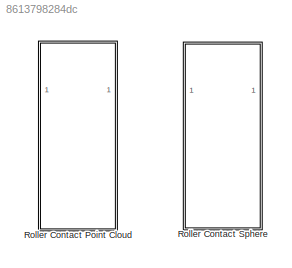
MODEL slx_8613798284dc
KIND library
CONFIG SolverName = VariableStepAuto
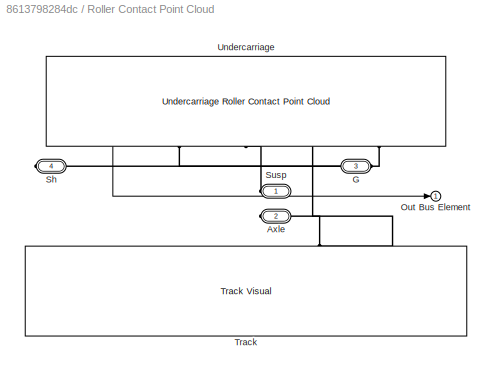
BLOCK [SubSystem] Roller Contact Point Cloud
BLOCK [PMIOPort] Roller Contact Point Cloud/Axle
  NameLocation = right
  Port = 2
  Side = Left
BLOCK [PMIOPort] Roller Contact Point Cloud/G
  Port = 3
  Side = Right
BLOCK [Outport] Roller Contact Point Cloud/Out Bus Element
  NameLocation = top
BLOCK [PMIOPort] Roller Contact Point Cloud/Sh
  NameLocation = left
  Port = 4
  Side = Right
BLOCK [PMIOPort] Roller Contact Point Cloud/Susp
  NameLocation = right
  Side = Left
BLOCK [Reference] Roller Contact Point Cloud/Track  REF=sm_rollerV_lib_underc_elem/Track Visual
  NameLocation = right
  SourceBlock = sm_rollerV_lib_underc_elem/Track Visual
  SourceType = Track Mass and Visual Element
BLOCK [Reference] Roller Contact Point Cloud/Undercarriage  REF=sm_rollerV_lib_underc_i1u2l7/Undercarriage
Roller Contact
Point Cloud
  LibrarySourceBlock = sm_excv_underc_lib/Undercarriage\nRoller Ground\nContact
  SourceBlock = sm_rollerV_lib_underc_i1u2l7/Undercarriage\nRoller Contact\nPoint Cloud
  SourceType = Undercarriage with Roller Ground Contact (Point Cloud)
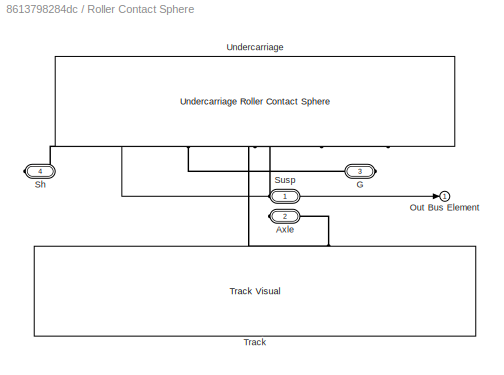
BLOCK [SubSystem] Roller Contact Sphere
BLOCK [PMIOPort] Roller Contact Sphere/Axle
  NameLocation = right
  Port = 2
  Side = Left
BLOCK [PMIOPort] Roller Contact Sphere/G
  NameLocation = right
  Port = 3
  Side = Right
BLOCK [Outport] Roller Contact Sphere/Out Bus Element
  NameLocation = top
BLOCK [PMIOPort] Roller Contact Sphere/Sh
  NameLocation = left
  Port = 4
  Side = Right
BLOCK [PMIOPort] Roller Contact Sphere/Susp
  NameLocation = right
  Side = Left
BLOCK [Reference] Roller Contact Sphere/Track  REF=sm_rollerV_lib_underc_elem/Track Visual
  NameLocation = right
  SourceBlock = sm_rollerV_lib_underc_elem/Track Visual
  SourceType = Track Mass and Visual Element
BLOCK [Reference] Roller Contact Sphere/Undercarriage  REF=sm_rollerV_lib_underc_i1u2l7/Undercarriage
Roller Contact
Sphere
  LibrarySourceBlock = sm_excv_underc_lib/Undercarriage\nRoller Ground\nSphere Contact
  SourceBlock = sm_rollerV_lib_underc_i1u2l7/Undercarriage\nRoller Contact\nSphere
  SourceType = Undercarriage with Roller Ground Contact (Spheres)
LINE Roller Contact Sphere/Undercarriage:1 -> Roller Contact Sphere/Out Bus Element:1
PNET net1: Roller Contact Sphere/Axle:RConn1 -- Roller Contact Sphere/Track:LConn1 -- Roller Contact Sphere/Undercarriage:RConn3
PLINE Roller Contact Sphere/G:RConn1 -- Roller Contact Sphere/Undercarriage:RConn1
PLINE Roller Contact Sphere/Sh:RConn1 -- Roller Contact Sphere/Undercarriage:RConn4
PLINE Roller Contact Sphere/Susp:RConn1 -- Roller Contact Sphere/Undercarriage:RConn2
note: PNET lines group multi-terminal physical nets as a canonical sorted terminal list (undirected conserving connections); 2-terminal nets keep the pairwise PLINE form
